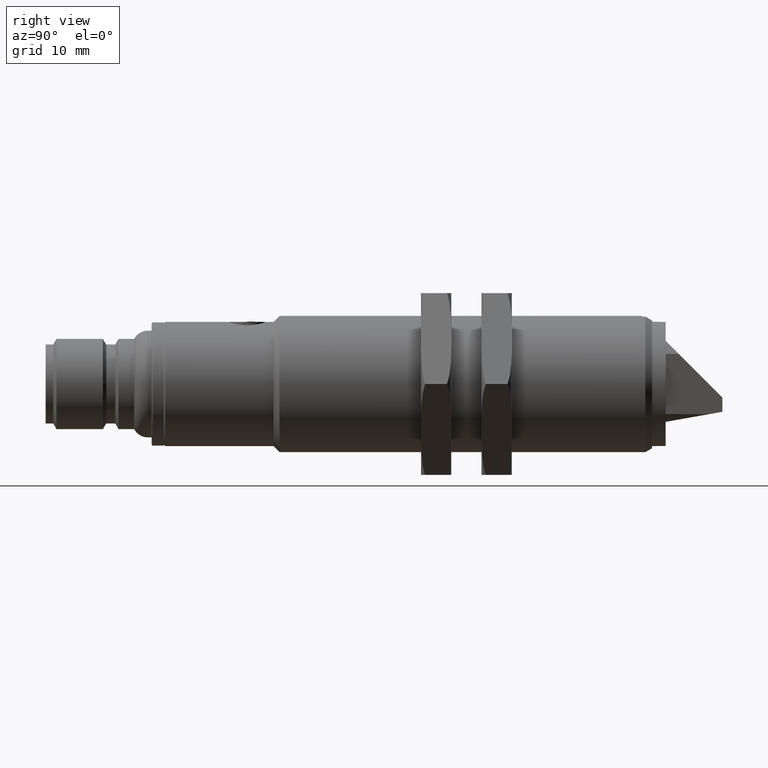
[diagram: clean part render]
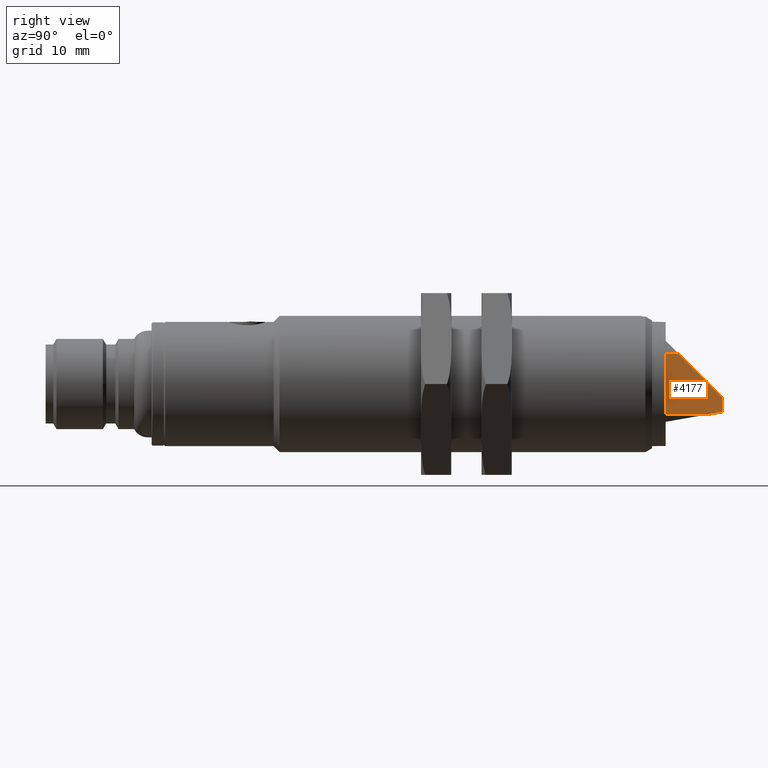
[diagram: same view with one face highlighted and labeled with its STEP entity id]
A machine part, right view. The second image highlights one B-rep face of the part: STEP entity #4177.
In plain terms, the highlighted planar face has unit normal (-1, 0, -0).
Its self-contained STEP definition (entity closure, byte-faithful):
#108 = ORIENTED_EDGE ( 'NONE', *, *, #679, .T. ) ;
#325 = DIRECTION ( 'NONE',  ( -1.000000000000000078E-15, 0.000000000000000000, 1.000000000000000000 ) ) ;
#346 = DIRECTION ( 'NONE',  ( -1.000000000000000000, 0.000000000000000000, -1.000000000000000078E-15 ) ) ;
#391 = EDGE_CURVE ( 'NONE', #1503, #2771, #2033, .T. ) ;
#491 = CARTESIAN_POINT ( 'NONE',  ( 0.2755905511811023723, 1.768386418970346208, -0.1565053481126057189 ) ) ;
#679 = EDGE_CURVE ( 'NONE', #1503, #5463, #698, .T. ) ;
#698 = LINE ( 'NONE', #4374, #4501 ) ;
#715 = CARTESIAN_POINT ( 'NONE',  ( 0.2755905511811023723, 1.811543257936763851, -0.1133485091461872013 ) ) ;
#842 = ORIENTED_EDGE ( 'NONE', *, *, #2951, .F. ) ;
#938 = CARTESIAN_POINT ( 'NONE',  ( 0.2755905511811023723, 1.701918951975066818, -0.1565053481126057189 ) ) ;
#1068 = CARTESIAN_POINT ( 'NONE',  ( 0.2755905511811023723, 1.768386418970346208, -0.1447853403419883944 ) ) ;
#1077 = VECTOR ( 'NONE', #3055, 39.37007874015748143 ) ;
#1185 = DIRECTION ( 'NONE',  ( 7.071067811865462514E-16, 0.7071067811865474617, -0.7071067811865474617 ) ) ;
#1290 = PLANE ( 'NONE',  #5416 ) ;
#1355 = DIRECTION ( 'NONE',  ( -1.736481776669299976E-16, 0.9848077530122080203, 0.1736481776669299981 ) ) ;
#1385 = EDGE_CURVE ( 'NONE', #1550, #4389, #3096, .T. ) ;
#1469 = DIRECTION ( 'NONE',  ( 0.000000000000000000, -1.000000000000000000, 0.000000000000000000 ) ) ;
#1503 = VERTEX_POINT ( 'NONE', #3885 ) ;
#1550 = VERTEX_POINT ( 'NONE', #938 ) ;
#1588 = VECTOR ( 'NONE', #1185, 39.37007874015748854 ) ;
#1667 = CARTESIAN_POINT ( 'NONE',  ( 0.2755905511811023723, 1.768386418970346208, -0.1565053481126057189 ) ) ;
#1690 = CARTESIAN_POINT ( 'NONE',  ( 0.2755905511811023723, 1.768386418970346208, -0.1565053481126057189 ) ) ;
#1814 = DIRECTION ( 'NONE',  ( 1.000000000000000078E-15, 0.000000000000000000, -1.000000000000000000 ) ) ;
#1907 = EDGE_CURVE ( 'NONE', #5463, #2264, #3855, .T. ) ;
#2033 = LINE ( 'NONE', #715, #1588 ) ;
#2156 = EDGE_CURVE ( 'NONE', #2771, #4389, #4292, .T. ) ;
#2264 = VERTEX_POINT ( 'NONE', #3507 ) ;
#2527 = FACE_OUTER_BOUND ( 'NONE', #5239, .T. ) ;
#2771 = VERTEX_POINT ( 'NONE', #3412 ) ;
#2951 = EDGE_CURVE ( 'NONE', #1550, #2264, #3346, .T. ) ;
#3017 = VECTOR ( 'NONE', #1814, 39.37007874015748143 ) ;
#3055 = DIRECTION ( 'NONE',  ( 1.000000000000000078E-15, 0.000000000000000000, -1.000000000000000000 ) ) ;
#3096 = LINE ( 'NONE', #5146, #3626 ) ;
#3346 = LINE ( 'NONE', #1690, #5237 ) ;
#3412 = CARTESIAN_POINT ( 'NONE',  ( 0.2755905511811023723, 1.768386418970346208, -0.07019167017976871148 ) ) ;
#3507 = CARTESIAN_POINT ( 'NONE',  ( 0.2755905511811023723, 1.473110828419167406, -0.1565053481126057189 ) ) ;
#3626 = VECTOR ( 'NONE', #1355, 39.37007874015748854 ) ;
#3855 = LINE ( 'NONE', #4331, #3017 ) ;
#3885 = CARTESIAN_POINT ( 'NONE',  ( 0.2755905511811023723, 1.541689400677972444, 0.1565053481126061075 ) ) ;
#4177 = ADVANCED_FACE ( 'NONE', ( #2527 ), #1290, .F. ) ;
#4244 = ORIENTED_EDGE ( 'NONE', *, *, #1907, .T. ) ;
#4268 = ORIENTED_EDGE ( 'NONE', *, *, #391, .F. ) ;
#4291 = CARTESIAN_POINT ( 'NONE',  ( 0.2755905511811023723, 1.473110828419167406, 0.1565053481126061075 ) ) ;
#4292 = LINE ( 'NONE', #491, #1077 ) ;
#4331 = CARTESIAN_POINT ( 'NONE',  ( 0.2755905511811023723, 1.473110828419167406, -0.1565053481126057189 ) ) ;
#4374 = CARTESIAN_POINT ( 'NONE',  ( 0.2755905511811023723, 1.768386418970346208, 0.1565053481126061075 ) ) ;
#4389 = VERTEX_POINT ( 'NONE', #1068 ) ;
#4501 = VECTOR ( 'NONE', #1469, 39.37007874015748143 ) ;
#4574 = ORIENTED_EDGE ( 'NONE', *, *, #1385, .T. ) ;
#5042 = DIRECTION ( 'NONE',  ( 0.000000000000000000, -1.000000000000000000, 0.000000000000000000 ) ) ;
#5132 = ORIENTED_EDGE ( 'NONE', *, *, #2156, .F. ) ;
#5146 = CARTESIAN_POINT ( 'NONE',  ( 0.2755905511811023723, 1.766382179601602376, -0.1451387418184958700 ) ) ;
#5237 = VECTOR ( 'NONE', #5042, 39.37007874015748143 ) ;
#5239 = EDGE_LOOP ( 'NONE', ( #4268, #108, #4244, #842, #4574, #5132 ) ) ;
#5416 = AXIS2_PLACEMENT_3D ( 'NONE', #1667, #346, #325 ) ;
#5463 = VERTEX_POINT ( 'NONE', #4291 ) ;